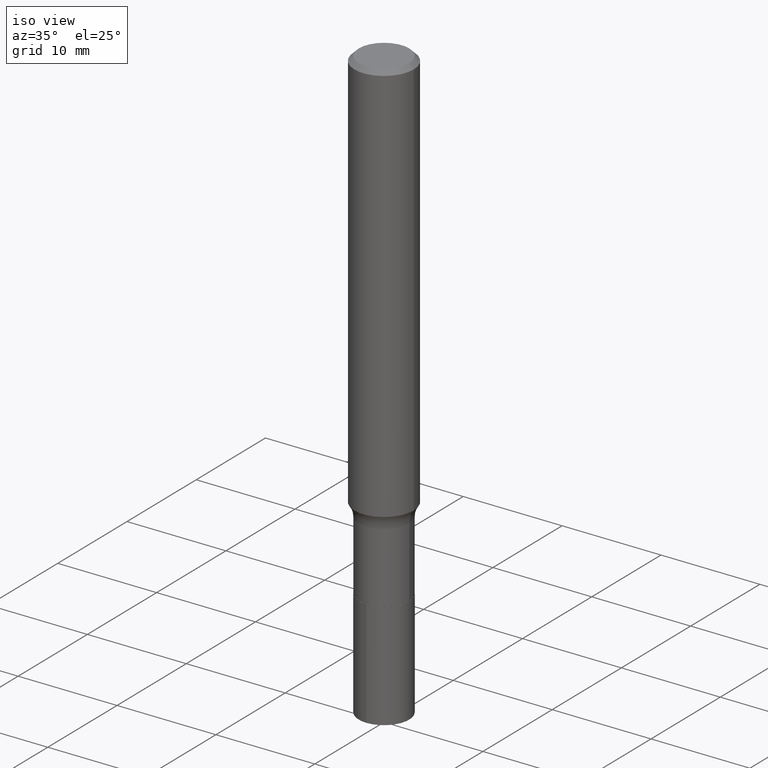
[diagram: clean part render]
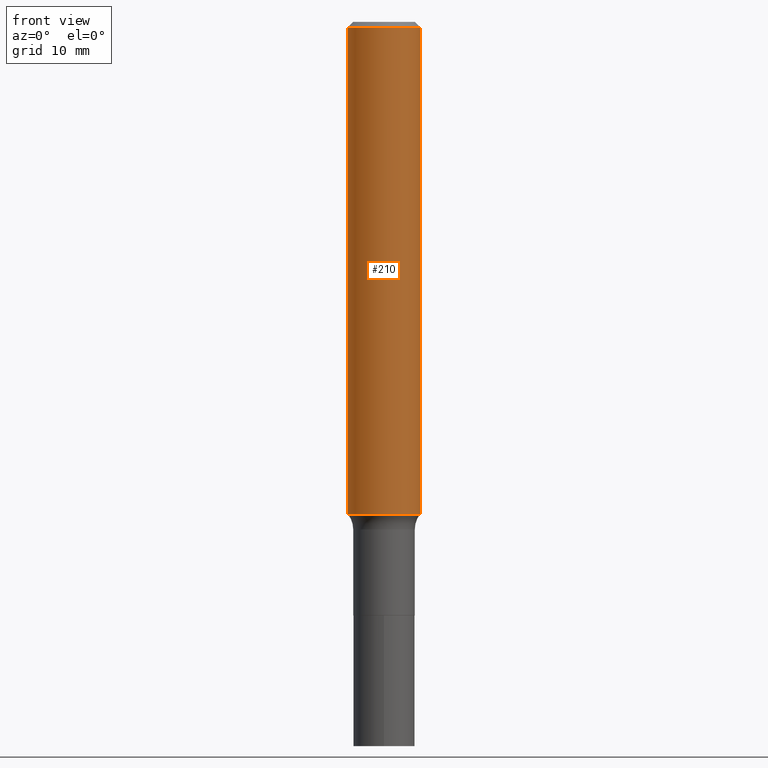
[diagram: tour spotlight — one face highlighted and labeled with its STEP entity id]
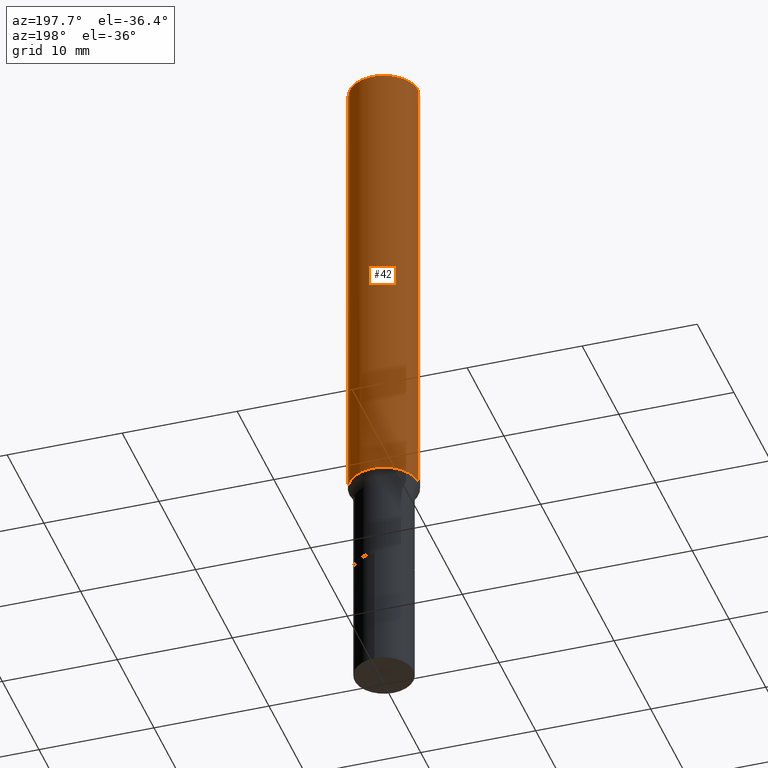
[diagram: tour spotlight — one face highlighted and labeled with its STEP entity id]
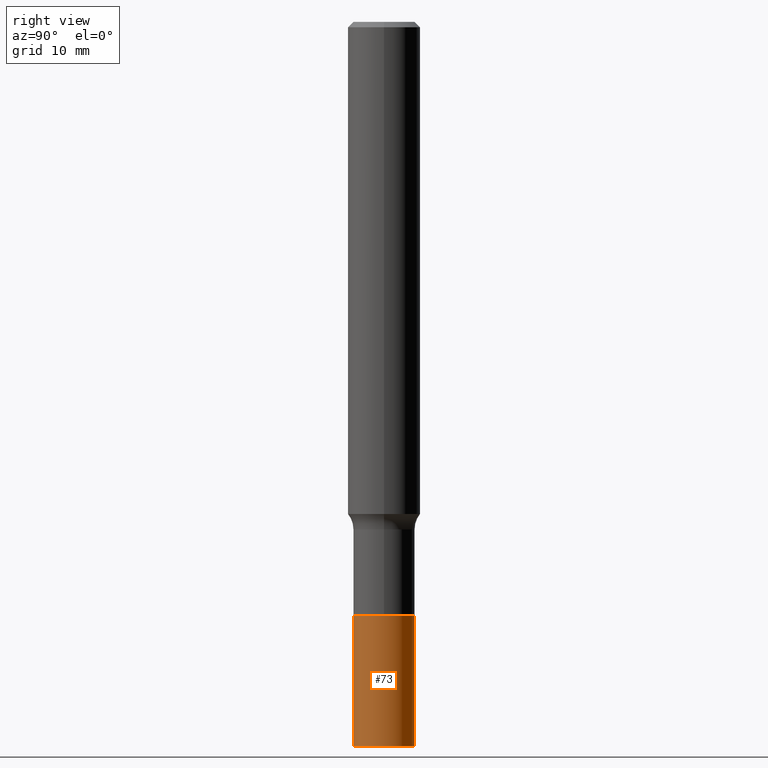
[diagram: tour spotlight — one face highlighted and labeled with its STEP entity id]
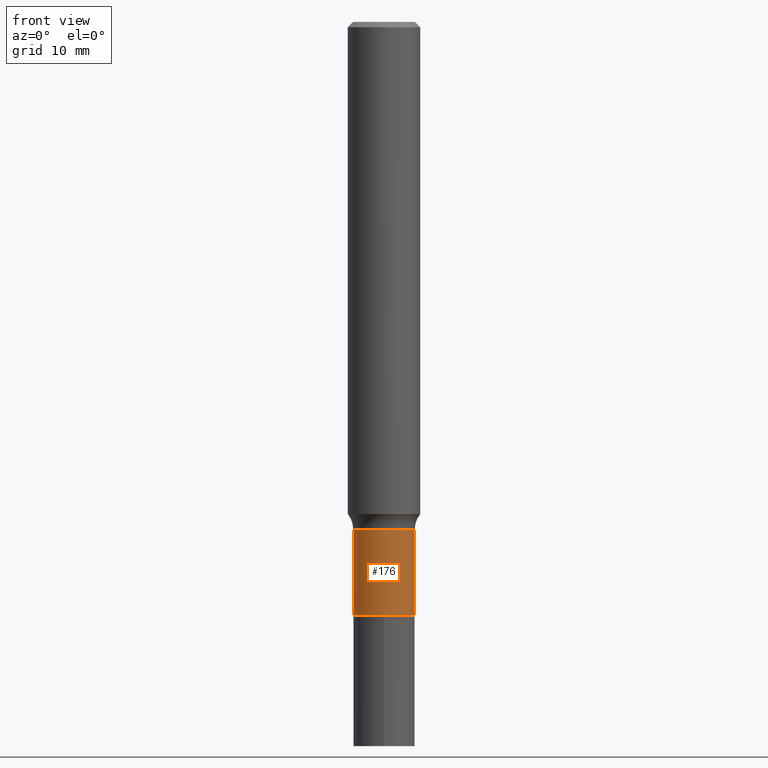
[diagram: tour spotlight — one face highlighted and labeled with its STEP entity id]
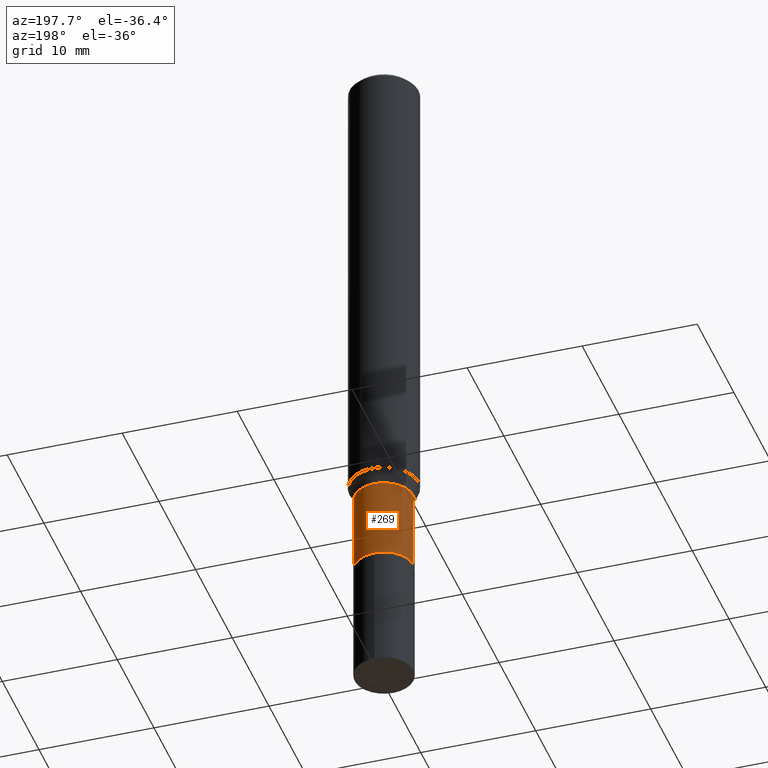
[diagram: tour spotlight — one face highlighted and labeled with its STEP entity id]
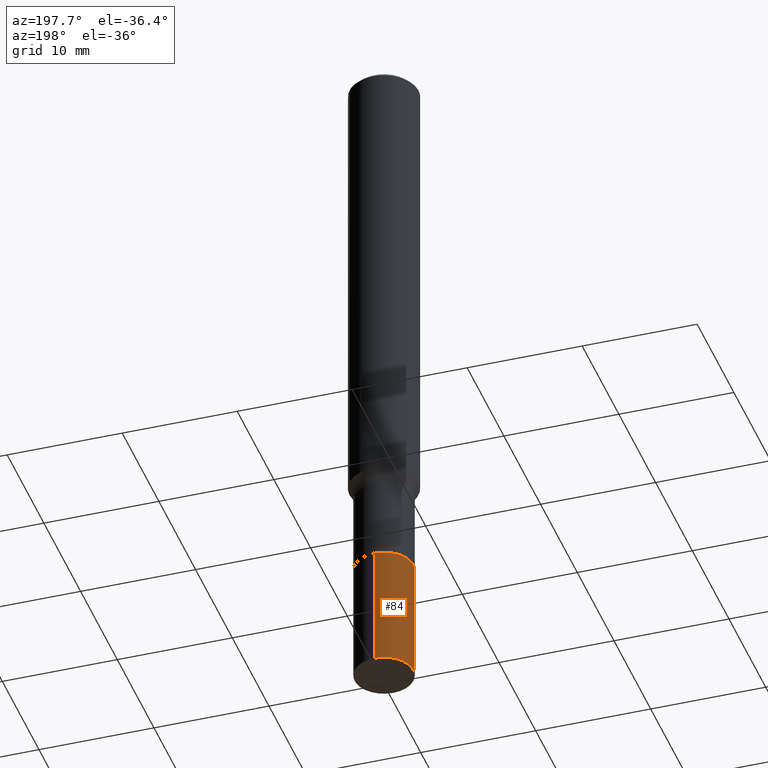
[diagram: tour spotlight — one face highlighted and labeled with its STEP entity id]
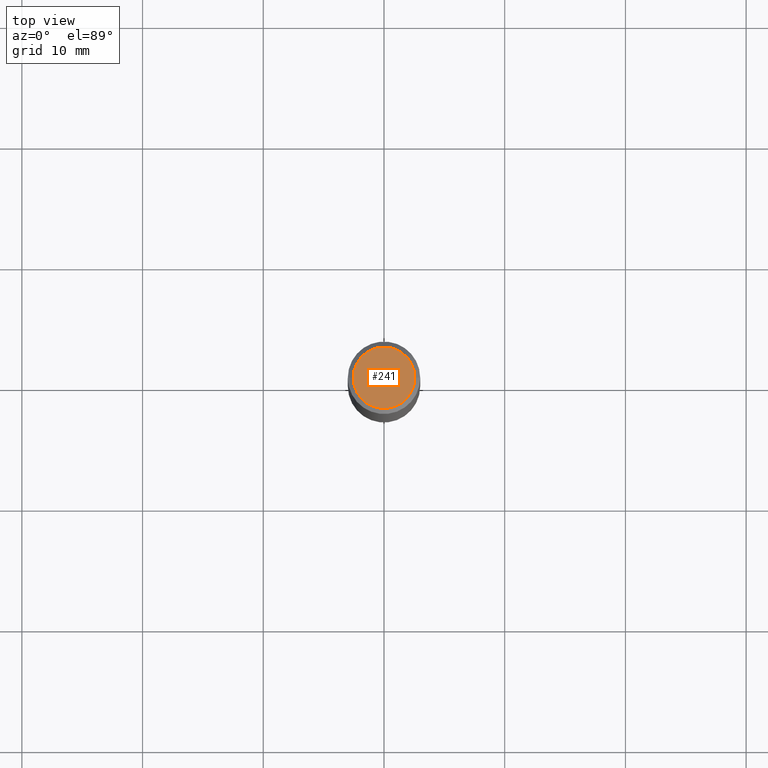
[diagram: tour spotlight — one face highlighted and labeled with its STEP entity id]
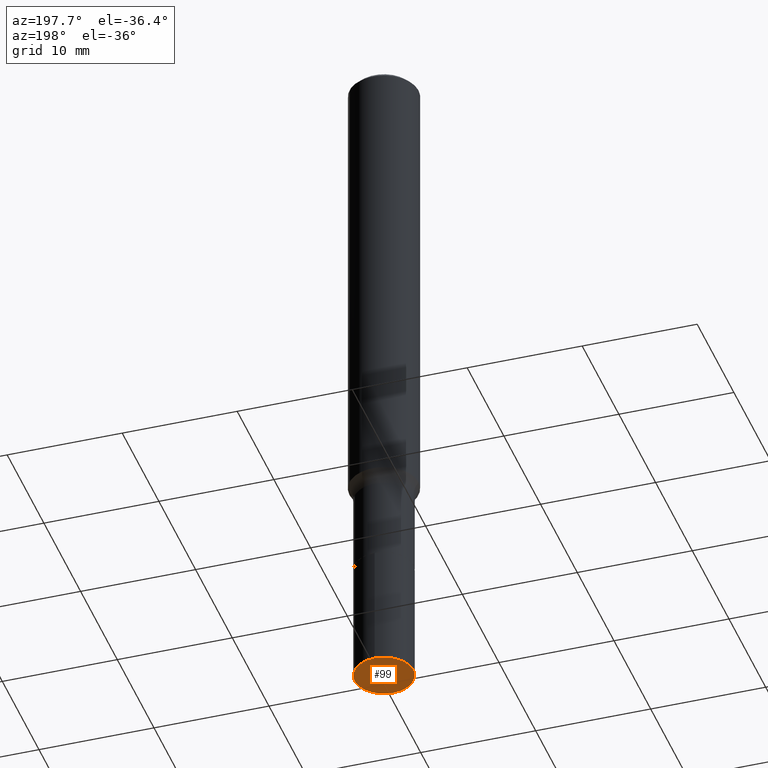
[diagram: tour spotlight — one face highlighted and labeled with its STEP entity id]
A machine part: a face-by-face anatomy tour. The part has 16 B-rep faces; the first image is the clean iso view, then the 8 largest visible faces are spotlighted one at a time (largest first), each with its STEP entity span.

Face 1 — front view, entity #210. In plain terms, the highlighted cylindrical surface (edge-blend (fillet) strip) has radius 2.9997 mm, axis along (-0, 0, 1).
Definition (entity closure, byte-faithful):
#17 = DIRECTION ( 'NONE',  ( 1.000000000000000000, -6.982962677686266711E-15, 4.876176775795935793E-29 ) ) ;
#35 = DIRECTION ( 'NONE',  ( 1.000000000000000000, -6.982962677686267499E-15, 0.000000000000000000 ) ) ;
#69 = CARTESIAN_POINT ( 'NONE',  ( -0.1181000000000000105, -1.993537154280403613E-15, -0.01771500000000011954 ) ) ;
#71 = EDGE_LOOP ( 'NONE', ( #380, #336, #272, #388 ) ) ;
#96 = CARTESIAN_POINT ( 'NONE',  ( 0.000000000000000000, 0.000000000000000000, 0.000000000000000000 ) ) ;
#105 = EDGE_CURVE ( 'NONE', #174, #450, #251, .T. ) ;
#121 = VECTOR ( 'NONE', #307, 39.37007874015748143 ) ;
#131 = FACE_OUTER_BOUND ( 'NONE', #71, .T. ) ;
#174 = VERTEX_POINT ( 'NONE', #209 ) ;
#179 = AXIS2_PLACEMENT_3D ( 'NONE', #207, #236, #268 ) ;
#182 = CARTESIAN_POINT ( 'NONE',  ( 0.1181000000000002048, -6.428212550743309629E-15, -1.604913248760255540 ) ) ;
#204 = LINE ( 'NONE', #342, #121 ) ;
#207 = CARTESIAN_POINT ( 'NONE',  ( 3.924765286476451324E-29, -5.603524658508559788E-15, -1.604913248760255540 ) ) ;
#209 = CARTESIAN_POINT ( 'NONE',  ( -0.1181000000000002048, -4.764373687575879225E-15, -1.604913248760255540 ) ) ;
#210 = ADVANCED_FACE ( 'NONE', ( #131 ), #416, .T. ) ;
#214 = DIRECTION ( 'NONE',  ( -2.445468806185136597E-29, 3.491481338843145583E-15, 1.000000000000000000 ) ) ;
#216 = DIRECTION ( 'NONE',  ( -2.445468806185136877E-29, 3.491481338843145188E-15, 1.000000000000000000 ) ) ;
#236 = DIRECTION ( 'NONE',  ( -2.445468806185136597E-29, 3.491481338843145583E-15, 1.000000000000000000 ) ) ;
#237 = VECTOR ( 'NONE', #216, 39.37007874015748143 ) ;
#244 = CARTESIAN_POINT ( 'NONE',  ( 4.332147990156999371E-31, -6.185159191760674092E-17, -0.01771500000000011954 ) ) ;
#251 = CIRCLE ( 'NONE', #179, 0.1181000000000002048 ) ;
#253 = EDGE_CURVE ( 'NONE', #174, #276, #204, .T. ) ;
#268 = DIRECTION ( 'NONE',  ( 1.000000000000000000, -6.982962677686268288E-15, 0.000000000000000000 ) ) ;
#272 = ORIENTED_EDGE ( 'NONE', *, *, #396, .T. ) ;
#273 = AXIS2_PLACEMENT_3D ( 'NONE', #96, #384, #17 ) ;
#276 = VERTEX_POINT ( 'NONE', #69 ) ;
#286 = LINE ( 'NONE', #356, #237 ) ;
#307 = DIRECTION ( 'NONE',  ( -2.445468806185136877E-29, 3.491481338843145188E-15, 1.000000000000000000 ) ) ;
#336 = ORIENTED_EDGE ( 'NONE', *, *, #105, .T. ) ;
#342 = CARTESIAN_POINT ( 'NONE',  ( -0.1181000000000001077, 8.391509709326790846E-16, -5.809262341591049389E-30 ) ) ;
#347 = VERTEX_POINT ( 'NONE', #392 ) ;
#352 = CIRCLE ( 'NONE', #381, 0.1181000000000000105 ) ;
#356 = CARTESIAN_POINT ( 'NONE',  ( 0.1181000000000001077, -8.246878922347488542E-16, 5.758764772215005345E-30 ) ) ;
#367 = EDGE_CURVE ( 'NONE', #276, #347, #352, .T. ) ;
#380 = ORIENTED_EDGE ( 'NONE', *, *, #253, .F. ) ;
#381 = AXIS2_PLACEMENT_3D ( 'NONE', #244, #214, #35 ) ;
#384 = DIRECTION ( 'NONE',  ( -2.445468806185136597E-29, 3.491481338843145583E-15, 1.000000000000000000 ) ) ;
#388 = ORIENTED_EDGE ( 'NONE', *, *, #367, .F. ) ;
#392 = CARTESIAN_POINT ( 'NONE',  ( 0.1181000000000000105, -8.865394841523550528E-16, -0.01771500000000011954 ) ) ;
#396 = EDGE_CURVE ( 'NONE', #450, #347, #286, .T. ) ;
#416 = CYLINDRICAL_SURFACE ( 'NONE', #273, 0.1181000000000001077 ) ;
#450 = VERTEX_POINT ( 'NONE', #182 ) ;

Face 2 — auxiliary view, entity #42. In plain terms, the highlighted cylindrical surface (edge-blend (fillet) strip) has radius 2.9997 mm, axis along (-0, 0, 1).
Definition (entity closure, byte-faithful):
#12 = FACE_OUTER_BOUND ( 'NONE', #442, .T. ) ;
#42 = ADVANCED_FACE ( 'NONE', ( #12 ), #404, .T. ) ;
#60 = DIRECTION ( 'NONE',  ( 1.000000000000000000, -6.982962677686268288E-15, 0.000000000000000000 ) ) ;
#65 = ORIENTED_EDGE ( 'NONE', *, *, #396, .F. ) ;
#69 = CARTESIAN_POINT ( 'NONE',  ( -0.1181000000000000105, -1.993537154280403613E-15, -0.01771500000000011954 ) ) ;
#103 = DIRECTION ( 'NONE',  ( -2.445468806185136597E-29, 3.491481338843145583E-15, 1.000000000000000000 ) ) ;
#121 = VECTOR ( 'NONE', #307, 39.37007874015748143 ) ;
#171 = AXIS2_PLACEMENT_3D ( 'NONE', #178, #314, #60 ) ;
#174 = VERTEX_POINT ( 'NONE', #209 ) ;
#178 = CARTESIAN_POINT ( 'NONE',  ( 3.924765286476451324E-29, -5.603524658508559788E-15, -1.604913248760255540 ) ) ;
#182 = CARTESIAN_POINT ( 'NONE',  ( 0.1181000000000002048, -6.428212550743309629E-15, -1.604913248760255540 ) ) ;
#204 = LINE ( 'NONE', #342, #121 ) ;
#209 = CARTESIAN_POINT ( 'NONE',  ( -0.1181000000000002048, -4.764373687575879225E-15, -1.604913248760255540 ) ) ;
#216 = DIRECTION ( 'NONE',  ( -2.445468806185136877E-29, 3.491481338843145188E-15, 1.000000000000000000 ) ) ;
#237 = VECTOR ( 'NONE', #216, 39.37007874015748143 ) ;
#247 = EDGE_CURVE ( 'NONE', #450, #174, #343, .T. ) ;
#250 = AXIS2_PLACEMENT_3D ( 'NONE', #446, #438, #265 ) ;
#253 = EDGE_CURVE ( 'NONE', #174, #276, #204, .T. ) ;
#265 = DIRECTION ( 'NONE',  ( 1.000000000000000000, -6.982962677686266711E-15, 4.876176775795935793E-29 ) ) ;
#276 = VERTEX_POINT ( 'NONE', #69 ) ;
#286 = LINE ( 'NONE', #356, #237 ) ;
#289 = AXIS2_PLACEMENT_3D ( 'NONE', #431, #103, #321 ) ;
#307 = DIRECTION ( 'NONE',  ( -2.445468806185136877E-29, 3.491481338843145188E-15, 1.000000000000000000 ) ) ;
#311 = EDGE_CURVE ( 'NONE', #347, #276, #449, .T. ) ;
#314 = DIRECTION ( 'NONE',  ( -2.445468806185136597E-29, 3.491481338843145583E-15, 1.000000000000000000 ) ) ;
#321 = DIRECTION ( 'NONE',  ( 1.000000000000000000, -6.982962677686267499E-15, 0.000000000000000000 ) ) ;
#342 = CARTESIAN_POINT ( 'NONE',  ( -0.1181000000000001077, 8.391509709326790846E-16, -5.809262341591049389E-30 ) ) ;
#343 = CIRCLE ( 'NONE', #171, 0.1181000000000002048 ) ;
#347 = VERTEX_POINT ( 'NONE', #392 ) ;
#356 = CARTESIAN_POINT ( 'NONE',  ( 0.1181000000000001077, -8.246878922347488542E-16, 5.758764772215005345E-30 ) ) ;
#365 = ORIENTED_EDGE ( 'NONE', *, *, #247, .T. ) ;
#383 = ORIENTED_EDGE ( 'NONE', *, *, #253, .T. ) ;
#392 = CARTESIAN_POINT ( 'NONE',  ( 0.1181000000000000105, -8.865394841523550528E-16, -0.01771500000000011954 ) ) ;
#396 = EDGE_CURVE ( 'NONE', #450, #347, #286, .T. ) ;
#404 = CYLINDRICAL_SURFACE ( 'NONE', #250, 0.1181000000000001077 ) ;
#411 = ORIENTED_EDGE ( 'NONE', *, *, #311, .F. ) ;
#431 = CARTESIAN_POINT ( 'NONE',  ( 4.332147990156999371E-31, -6.185159191760674092E-17, -0.01771500000000011954 ) ) ;
#438 = DIRECTION ( 'NONE',  ( -2.445468806185136597E-29, 3.491481338843145583E-15, 1.000000000000000000 ) ) ;
#442 = EDGE_LOOP ( 'NONE', ( #365, #383, #411, #65 ) ) ;
#446 = CARTESIAN_POINT ( 'NONE',  ( 0.000000000000000000, 0.000000000000000000, 0.000000000000000000 ) ) ;
#449 = CIRCLE ( 'NONE', #289, 0.1181000000000000105 ) ;
#450 = VERTEX_POINT ( 'NONE', #182 ) ;

Face 3 — right view, entity #73. In plain terms, the highlighted cylindrical surface (edge-blend (fillet) strip) has radius 2.5502 mm, axis along (-0, 0, 1).
Definition (entity closure, byte-faithful):
#2 = EDGE_CURVE ( 'NONE', #377, #160, #199, .T. ) ;
#4 = AXIS2_PLACEMENT_3D ( 'NONE', #194, #254, #401 ) ;
#10 = CARTESIAN_POINT ( 'NONE',  ( 5.792487377357313463E-29, -8.224949339710422363E-15, -2.362200000000000522 ) ) ;
#16 = ORIENTED_EDGE ( 'NONE', *, *, #452, .F. ) ;
#20 = CARTESIAN_POINT ( 'NONE',  ( 7.133849067031929695E-16, 0.1003999999999917597, -2.362200000000000966 ) ) ;
#23 = CIRCLE ( 'NONE', #4, 0.1004000000000000031 ) ;
#24 = VERTEX_POINT ( 'NONE', #123 ) ;
#36 = EDGE_CURVE ( 'NONE', #160, #458, #334, .T. ) ;
#44 = ORIENTED_EDGE ( 'NONE', *, *, #36, .T. ) ;
#73 = ADVANCED_FACE ( 'NONE', ( #88 ), #259, .T. ) ;
#80 = ORIENTED_EDGE ( 'NONE', *, *, #2, .T. ) ;
#88 = FACE_OUTER_BOUND ( 'NONE', #138, .T. ) ;
#113 = CARTESIAN_POINT ( 'NONE',  ( 7.133849067031982943E-16, 0.1003999999999932446, -1.936200000000000587 ) ) ;
#123 = CARTESIAN_POINT ( 'NONE',  ( -7.010894528396538437E-16, -0.1004000000000067616, -1.936199999999999921 ) ) ;
#138 = EDGE_LOOP ( 'NONE', ( #80, #44, #16, #423 ) ) ;
#154 = DIRECTION ( 'NONE',  ( -2.482560269534391966E-29, 3.438364252212024500E-15, 1.000000000000000000 ) ) ;
#155 = CARTESIAN_POINT ( 'NONE',  ( 7.133849067031878419E-16, 0.1003999999999932446, -1.936200000000000587 ) ) ;
#160 = VERTEX_POINT ( 'NONE', #20 ) ;
#161 = DIRECTION ( 'NONE',  ( -6.982962677686266711E-15, -1.000000000000000000, 2.720964137115800271E-15 ) ) ;
#194 = CARTESIAN_POINT ( 'NONE',  ( 4.734916702535661881E-29, -6.760206168268099421E-15, -1.936200000000000143 ) ) ;
#199 = CIRCLE ( 'NONE', #362, 0.1003999999999999893 ) ;
#225 = CARTESIAN_POINT ( 'NONE',  ( -7.010894528396538437E-16, -0.1004000000000067616, -1.936199999999999921 ) ) ;
#254 = DIRECTION ( 'NONE',  ( -2.482560269534391685E-29, 3.438364252212024106E-15, 1.000000000000000000 ) ) ;
#259 = CYLINDRICAL_SURFACE ( 'NONE', #426, 0.1004000000000000031 ) ;
#294 = DIRECTION ( 'NONE',  ( -2.482560269534391966E-29, 3.438364252212024500E-15, 1.000000000000000000 ) ) ;
#300 = DIRECTION ( 'NONE',  ( -2.482560269534391685E-29, 3.438364252212024106E-15, 1.000000000000000000 ) ) ;
#334 = LINE ( 'NONE', #155, #439 ) ;
#359 = VECTOR ( 'NONE', #154, 39.37007874015748143 ) ;
#362 = AXIS2_PLACEMENT_3D ( 'NONE', #10, #444, #161 ) ;
#371 = CARTESIAN_POINT ( 'NONE',  ( 4.734916702535661881E-29, -6.760206168268099421E-15, -1.936200000000000143 ) ) ;
#377 = VERTEX_POINT ( 'NONE', #463 ) ;
#398 = LINE ( 'NONE', #225, #359 ) ;
#401 = DIRECTION ( 'NONE',  ( -6.982962677686266711E-15, -1.000000000000000000, 2.720964137115799877E-15 ) ) ;
#423 = ORIENTED_EDGE ( 'NONE', *, *, #459, .F. ) ;
#426 = AXIS2_PLACEMENT_3D ( 'NONE', #371, #300, #445 ) ;
#439 = VECTOR ( 'NONE', #294, 39.37007874015748143 ) ;
#444 = DIRECTION ( 'NONE',  ( -2.482560269534391685E-29, 3.438364252212024106E-15, 1.000000000000000000 ) ) ;
#445 = DIRECTION ( 'NONE',  ( -6.982962677686266711E-15, -1.000000000000000000, 2.720964137115799877E-15 ) ) ;
#452 = EDGE_CURVE ( 'NONE', #24, #458, #23, .T. ) ;
#458 = VERTEX_POINT ( 'NONE', #113 ) ;
#459 = EDGE_CURVE ( 'NONE', #377, #24, #398, .T. ) ;
#463 = CARTESIAN_POINT ( 'NONE',  ( -7.010894528396431941E-16, -0.1004000000000082188, -2.362200000000000077 ) ) ;

Face 4 — front view, entity #176. In plain terms, the highlighted cylindrical surface (edge-blend (fillet) strip) has radius 2.5502 mm, axis along (-0, 0, 1).
Definition (entity closure, byte-faithful):
#5 = CARTESIAN_POINT ( 'NONE',  ( 0.1004000000000000031, -7.459549880438378994E-15, -1.935700000000000420 ) ) ;
#7 = ORIENTED_EDGE ( 'NONE', *, *, #166, .T. ) ;
#21 = VECTOR ( 'NONE', #466, 39.37007874015748143 ) ;
#31 = AXIS2_PLACEMENT_3D ( 'NONE', #419, #351, #233 ) ;
#40 = VERTEX_POINT ( 'NONE', #5 ) ;
#47 = VERTEX_POINT ( 'NONE', #301 ) ;
#48 = LINE ( 'NONE', #82, #418 ) ;
#61 = EDGE_LOOP ( 'NONE', ( #94, #7, #331, #420 ) ) ;
#68 = DIRECTION ( 'NONE',  ( -2.445468806185136597E-29, 3.491481338843145583E-15, 1.000000000000000000 ) ) ;
#75 = DIRECTION ( 'NONE',  ( 1.000000000000000000, -6.982962677686264344E-15, 0.000000000000000000 ) ) ;
#82 = CARTESIAN_POINT ( 'NONE',  ( -0.1003999999999999893, 7.133849067031405103E-16, -4.938610830615924293E-30 ) ) ;
#86 = VERTEX_POINT ( 'NONE', #126 ) ;
#94 = ORIENTED_EDGE ( 'NONE', *, *, #467, .F. ) ;
#126 = CARTESIAN_POINT ( 'NONE',  ( -0.1003999999999999754, -5.555220689055844179E-15, -1.655100000000000238 ) ) ;
#130 = DIRECTION ( 'NONE',  ( 1.000000000000000000, -6.982962677686262766E-15, 0.000000000000000000 ) ) ;
#166 = EDGE_CURVE ( 'NONE', #47, #40, #410, .T. ) ;
#176 = ADVANCED_FACE ( 'NONE', ( #454 ), #412, .T. ) ;
#181 = VERTEX_POINT ( 'NONE', #339 ) ;
#183 = LINE ( 'NONE', #245, #21 ) ;
#191 = AXIS2_PLACEMENT_3D ( 'NONE', #462, #324, #75 ) ;
#233 = DIRECTION ( 'NONE',  ( 1.000000000000000000, -6.982962677686266711E-15, 4.876176775795935232E-29 ) ) ;
#245 = CARTESIAN_POINT ( 'NONE',  ( 0.1003999999999999893, -7.010894528397010768E-16, 4.895681482899118454E-30 ) ) ;
#283 = EDGE_CURVE ( 'NONE', #86, #181, #432, .T. ) ;
#297 = AXIS2_PLACEMENT_3D ( 'NONE', #414, #68, #130 ) ;
#301 = CARTESIAN_POINT ( 'NONE',  ( -0.1004000000000000031, -5.555220689055844179E-15, -1.935700000000000420 ) ) ;
#318 = EDGE_CURVE ( 'NONE', #40, #181, #183, .T. ) ;
#324 = DIRECTION ( 'NONE',  ( -2.445468806185136597E-29, 3.491481338843145583E-15, 1.000000000000000000 ) ) ;
#331 = ORIENTED_EDGE ( 'NONE', *, *, #318, .T. ) ;
#339 = CARTESIAN_POINT ( 'NONE',  ( 0.1003999999999999754, -6.479840216758992537E-15, -1.655100000000000238 ) ) ;
#351 = DIRECTION ( 'NONE',  ( -2.445468806185136597E-29, 3.491481338843145583E-15, 1.000000000000000000 ) ) ;
#410 = CIRCLE ( 'NONE', #297, 0.1004000000000000031 ) ;
#412 = CYLINDRICAL_SURFACE ( 'NONE', #31, 0.1003999999999999893 ) ;
#414 = CARTESIAN_POINT ( 'NONE',  ( 4.733693968132569640E-29, -6.758460427598678707E-15, -1.935700000000000420 ) ) ;
#418 = VECTOR ( 'NONE', #440, 39.37007874015748143 ) ;
#419 = CARTESIAN_POINT ( 'NONE',  ( 0.000000000000000000, 0.000000000000000000, 0.000000000000000000 ) ) ;
#420 = ORIENTED_EDGE ( 'NONE', *, *, #283, .F. ) ;
#432 = CIRCLE ( 'NONE', #191, 0.1003999999999999754 ) ;
#440 = DIRECTION ( 'NONE',  ( -2.445468806185136877E-29, 3.491481338843145188E-15, 1.000000000000000000 ) ) ;
#454 = FACE_OUTER_BOUND ( 'NONE', #61, .T. ) ;
#462 = CARTESIAN_POINT ( 'NONE',  ( 4.047495421117020390E-29, -5.778750763919291461E-15, -1.655100000000000238 ) ) ;
#466 = DIRECTION ( 'NONE',  ( -2.445468806185136877E-29, 3.491481338843145188E-15, 1.000000000000000000 ) ) ;
#467 = EDGE_CURVE ( 'NONE', #47, #86, #48, .T. ) ;

Face 5 — auxiliary view, entity #269. In plain terms, the highlighted cylindrical surface (edge-blend (fillet) strip) has radius 2.5502 mm, axis along (-0, 0, 1).
Definition (entity closure, byte-faithful):
#1 = FACE_OUTER_BOUND ( 'NONE', #98, .T. ) ;
#5 = CARTESIAN_POINT ( 'NONE',  ( 0.1004000000000000031, -7.459549880438378994E-15, -1.935700000000000420 ) ) ;
#21 = VECTOR ( 'NONE', #466, 39.37007874015748143 ) ;
#39 = DIRECTION ( 'NONE',  ( 1.000000000000000000, -6.982962677686262766E-15, 0.000000000000000000 ) ) ;
#40 = VERTEX_POINT ( 'NONE', #5 ) ;
#46 = ORIENTED_EDGE ( 'NONE', *, *, #467, .T. ) ;
#47 = VERTEX_POINT ( 'NONE', #301 ) ;
#48 = LINE ( 'NONE', #82, #418 ) ;
#56 = CARTESIAN_POINT ( 'NONE',  ( 4.047495421117020390E-29, -5.778750763919291461E-15, -1.655100000000000238 ) ) ;
#64 = AXIS2_PLACEMENT_3D ( 'NONE', #56, #240, #132 ) ;
#78 = CARTESIAN_POINT ( 'NONE',  ( 0.000000000000000000, 0.000000000000000000, 0.000000000000000000 ) ) ;
#82 = CARTESIAN_POINT ( 'NONE',  ( -0.1003999999999999893, 7.133849067031405103E-16, -4.938610830615924293E-30 ) ) ;
#86 = VERTEX_POINT ( 'NONE', #126 ) ;
#89 = AXIS2_PLACEMENT_3D ( 'NONE', #143, #317, #39 ) ;
#98 = EDGE_LOOP ( 'NONE', ( #190, #46, #144, #285 ) ) ;
#107 = DIRECTION ( 'NONE',  ( -2.445468806185136597E-29, 3.491481338843145583E-15, 1.000000000000000000 ) ) ;
#109 = CIRCLE ( 'NONE', #89, 0.1004000000000000031 ) ;
#126 = CARTESIAN_POINT ( 'NONE',  ( -0.1003999999999999754, -5.555220689055844179E-15, -1.655100000000000238 ) ) ;
#132 = DIRECTION ( 'NONE',  ( 1.000000000000000000, -6.982962677686264344E-15, 0.000000000000000000 ) ) ;
#143 = CARTESIAN_POINT ( 'NONE',  ( 4.733693968132569640E-29, -6.758460427598678707E-15, -1.935700000000000420 ) ) ;
#144 = ORIENTED_EDGE ( 'NONE', *, *, #193, .F. ) ;
#181 = VERTEX_POINT ( 'NONE', #339 ) ;
#183 = LINE ( 'NONE', #245, #21 ) ;
#186 = CYLINDRICAL_SURFACE ( 'NONE', #456, 0.1003999999999999893 ) ;
#190 = ORIENTED_EDGE ( 'NONE', *, *, #332, .T. ) ;
#193 = EDGE_CURVE ( 'NONE', #181, #86, #326, .T. ) ;
#240 = DIRECTION ( 'NONE',  ( -2.445468806185136597E-29, 3.491481338843145583E-15, 1.000000000000000000 ) ) ;
#245 = CARTESIAN_POINT ( 'NONE',  ( 0.1003999999999999893, -7.010894528397010768E-16, 4.895681482899118454E-30 ) ) ;
#269 = ADVANCED_FACE ( 'NONE', ( #1 ), #186, .T. ) ;
#280 = DIRECTION ( 'NONE',  ( 1.000000000000000000, -6.982962677686266711E-15, 4.876176775795935232E-29 ) ) ;
#285 = ORIENTED_EDGE ( 'NONE', *, *, #318, .F. ) ;
#301 = CARTESIAN_POINT ( 'NONE',  ( -0.1004000000000000031, -5.555220689055844179E-15, -1.935700000000000420 ) ) ;
#317 = DIRECTION ( 'NONE',  ( -2.445468806185136597E-29, 3.491481338843145583E-15, 1.000000000000000000 ) ) ;
#318 = EDGE_CURVE ( 'NONE', #40, #181, #183, .T. ) ;
#326 = CIRCLE ( 'NONE', #64, 0.1003999999999999754 ) ;
#332 = EDGE_CURVE ( 'NONE', #40, #47, #109, .T. ) ;
#339 = CARTESIAN_POINT ( 'NONE',  ( 0.1003999999999999754, -6.479840216758992537E-15, -1.655100000000000238 ) ) ;
#418 = VECTOR ( 'NONE', #440, 39.37007874015748143 ) ;
#440 = DIRECTION ( 'NONE',  ( -2.445468806185136877E-29, 3.491481338843145188E-15, 1.000000000000000000 ) ) ;
#456 = AXIS2_PLACEMENT_3D ( 'NONE', #78, #107, #280 ) ;
#466 = DIRECTION ( 'NONE',  ( -2.445468806185136877E-29, 3.491481338843145188E-15, 1.000000000000000000 ) ) ;
#467 = EDGE_CURVE ( 'NONE', #47, #86, #48, .T. ) ;

Face 6 — auxiliary view, entity #84. In plain terms, the highlighted cylindrical surface (edge-blend (fillet) strip) has radius 2.5502 mm, axis along (-0, 0, 1).
Definition (entity closure, byte-faithful):
#20 = CARTESIAN_POINT ( 'NONE',  ( 7.133849067031929695E-16, 0.1003999999999917597, -2.362200000000000966 ) ) ;
#24 = VERTEX_POINT ( 'NONE', #123 ) ;
#26 = ORIENTED_EDGE ( 'NONE', *, *, #354, .F. ) ;
#34 = ORIENTED_EDGE ( 'NONE', *, *, #36, .F. ) ;
#36 = EDGE_CURVE ( 'NONE', #160, #458, #334, .T. ) ;
#49 = CYLINDRICAL_SURFACE ( 'NONE', #151, 0.1004000000000000031 ) ;
#53 = CIRCLE ( 'NONE', #281, 0.1003999999999999893 ) ;
#72 = DIRECTION ( 'NONE',  ( -6.982962677686266711E-15, -1.000000000000000000, 2.720964137115799877E-15 ) ) ;
#83 = DIRECTION ( 'NONE',  ( -2.482560269534391685E-29, 3.438364252212024106E-15, 1.000000000000000000 ) ) ;
#84 = ADVANCED_FACE ( 'NONE', ( #153 ), #49, .T. ) ;
#91 = EDGE_LOOP ( 'NONE', ( #34, #305, #213, #26 ) ) ;
#108 = CARTESIAN_POINT ( 'NONE',  ( 5.792487377357313463E-29, -8.224949339710422363E-15, -2.362200000000000522 ) ) ;
#113 = CARTESIAN_POINT ( 'NONE',  ( 7.133849067031982943E-16, 0.1003999999999932446, -1.936200000000000587 ) ) ;
#123 = CARTESIAN_POINT ( 'NONE',  ( -7.010894528396538437E-16, -0.1004000000000067616, -1.936199999999999921 ) ) ;
#142 = CIRCLE ( 'NONE', #260, 0.1004000000000000031 ) ;
#149 = DIRECTION ( 'NONE',  ( -6.982962677686266711E-15, -1.000000000000000000, 2.720964137115800271E-15 ) ) ;
#151 = AXIS2_PLACEMENT_3D ( 'NONE', #373, #83, #201 ) ;
#153 = FACE_OUTER_BOUND ( 'NONE', #91, .T. ) ;
#154 = DIRECTION ( 'NONE',  ( -2.482560269534391966E-29, 3.438364252212024500E-15, 1.000000000000000000 ) ) ;
#155 = CARTESIAN_POINT ( 'NONE',  ( 7.133849067031878419E-16, 0.1003999999999932446, -1.936200000000000587 ) ) ;
#160 = VERTEX_POINT ( 'NONE', #20 ) ;
#201 = DIRECTION ( 'NONE',  ( -6.982962677686266711E-15, -1.000000000000000000, 2.720964137115799877E-15 ) ) ;
#213 = ORIENTED_EDGE ( 'NONE', *, *, #459, .T. ) ;
#225 = CARTESIAN_POINT ( 'NONE',  ( -7.010894528396538437E-16, -0.1004000000000067616, -1.936199999999999921 ) ) ;
#260 = AXIS2_PLACEMENT_3D ( 'NONE', #390, #468, #72 ) ;
#281 = AXIS2_PLACEMENT_3D ( 'NONE', #108, #315, #149 ) ;
#294 = DIRECTION ( 'NONE',  ( -2.482560269534391966E-29, 3.438364252212024500E-15, 1.000000000000000000 ) ) ;
#305 = ORIENTED_EDGE ( 'NONE', *, *, #322, .T. ) ;
#315 = DIRECTION ( 'NONE',  ( -2.482560269534391685E-29, 3.438364252212024106E-15, 1.000000000000000000 ) ) ;
#322 = EDGE_CURVE ( 'NONE', #160, #377, #53, .T. ) ;
#334 = LINE ( 'NONE', #155, #439 ) ;
#354 = EDGE_CURVE ( 'NONE', #458, #24, #142, .T. ) ;
#359 = VECTOR ( 'NONE', #154, 39.37007874015748143 ) ;
#373 = CARTESIAN_POINT ( 'NONE',  ( 4.734916702535661881E-29, -6.760206168268099421E-15, -1.936200000000000143 ) ) ;
#377 = VERTEX_POINT ( 'NONE', #463 ) ;
#390 = CARTESIAN_POINT ( 'NONE',  ( 4.734916702535661881E-29, -6.760206168268099421E-15, -1.936200000000000143 ) ) ;
#398 = LINE ( 'NONE', #225, #359 ) ;
#439 = VECTOR ( 'NONE', #294, 39.37007874015748143 ) ;
#458 = VERTEX_POINT ( 'NONE', #113 ) ;
#459 = EDGE_CURVE ( 'NONE', #377, #24, #398, .T. ) ;
#463 = CARTESIAN_POINT ( 'NONE',  ( -7.010894528396431941E-16, -0.1004000000000082188, -2.362200000000000077 ) ) ;
#468 = DIRECTION ( 'NONE',  ( -2.482560269534391685E-29, 3.438364252212024106E-15, 1.000000000000000000 ) ) ;

Face 7 — top view, entity #241. In plain terms, the highlighted planar face has unit normal (0, -0, -1).
Definition (entity closure, byte-faithful):
#27 = FACE_OUTER_BOUND ( 'NONE', #461, .T. ) ;
#41 = CARTESIAN_POINT ( 'NONE',  ( 8.017399369065212404E-46, -1.144672146802464325E-31, -3.278471329827401435E-17 ) ) ;
#74 = DIRECTION ( 'NONE',  ( 1.000000000000000000, -6.982962677686266711E-15, 4.875668750515089058E-29 ) ) ;
#77 = AXIS2_PLACEMENT_3D ( 'NONE', #41, #102, #188 ) ;
#93 = DIRECTION ( 'NONE',  ( 2.438088387897960049E-29, -3.491481338843145188E-15, -1.000000000000000000 ) ) ;
#100 = CARTESIAN_POINT ( 'NONE',  ( -0.1003849999999999465, 7.319105043583383731E-16, -3.278471329827902485E-17 ) ) ;
#101 = ORIENTED_EDGE ( 'NONE', *, *, #303, .T. ) ;
#102 = DIRECTION ( 'NONE',  ( -2.445468806185136597E-29, 3.491481338843145583E-15, 1.000000000000000000 ) ) ;
#177 = DIRECTION ( 'NONE',  ( -1.000000000000000000, 6.982962677686265922E-15, -4.876176775795935793E-29 ) ) ;
#180 = CIRCLE ( 'NONE', #77, 0.1003849999999999465 ) ;
#188 = DIRECTION ( 'NONE',  ( 1.000000000000000000, -6.982962677686266711E-15, 4.875668750515089058E-29 ) ) ;
#223 = AXIS2_PLACEMENT_3D ( 'NONE', #248, #391, #74 ) ;
#235 = PLANE ( 'NONE',  #465 ) ;
#241 = ADVANCED_FACE ( 'NONE', ( #27 ), #235, .F. ) ;
#243 = VERTEX_POINT ( 'NONE', #100 ) ;
#248 = CARTESIAN_POINT ( 'NONE',  ( 8.017399369065212404E-46, -1.144672146802464325E-31, -3.278471329827401435E-17 ) ) ;
#258 = ORIENTED_EDGE ( 'NONE', *, *, #422, .T. ) ;
#288 = CARTESIAN_POINT ( 'NONE',  ( 0.1003849999999999465, -7.803837484803598359E-16, -3.278471329826883745E-17 ) ) ;
#303 = EDGE_CURVE ( 'NONE', #243, #429, #393, .T. ) ;
#391 = DIRECTION ( 'NONE',  ( -2.445468806185136597E-29, 3.491481338843145583E-15, 1.000000000000000000 ) ) ;
#393 = CIRCLE ( 'NONE', #223, 0.1003849999999999465 ) ;
#422 = EDGE_CURVE ( 'NONE', #429, #243, #180, .T. ) ;
#429 = VERTEX_POINT ( 'NONE', #288 ) ;
#448 = CARTESIAN_POINT ( 'NONE',  ( 4.008699684532606202E-46, -5.723360734012321624E-32, -1.639235664913700718E-17 ) ) ;
#461 = EDGE_LOOP ( 'NONE', ( #101, #258 ) ) ;
#465 = AXIS2_PLACEMENT_3D ( 'NONE', #448, #93, #177 ) ;

Face 8 — auxiliary view, entity #99. In plain terms, the highlighted planar face has unit normal (-0, 0, 1).
Definition (entity closure, byte-faithful):
#2 = EDGE_CURVE ( 'NONE', #377, #160, #199, .T. ) ;
#10 = CARTESIAN_POINT ( 'NONE',  ( 5.792487377357313463E-29, -8.224949339710422363E-15, -2.362200000000000522 ) ) ;
#20 = CARTESIAN_POINT ( 'NONE',  ( 7.133849067031929695E-16, 0.1003999999999917597, -2.362200000000000966 ) ) ;
#43 = FACE_OUTER_BOUND ( 'NONE', #222, .T. ) ;
#53 = CIRCLE ( 'NONE', #281, 0.1003999999999999893 ) ;
#55 = ORIENTED_EDGE ( 'NONE', *, *, #322, .F. ) ;
#66 = DIRECTION ( 'NONE',  ( -6.982962677686265922E-15, -1.000000000000000000, 3.438364252212024500E-15 ) ) ;
#99 = ADVANCED_FACE ( 'NONE', ( #43 ), #291, .F. ) ;
#108 = CARTESIAN_POINT ( 'NONE',  ( 5.792487377357313463E-29, -8.224949339710422363E-15, -2.362200000000000522 ) ) ;
#149 = DIRECTION ( 'NONE',  ( -6.982962677686266711E-15, -1.000000000000000000, 2.720964137115800271E-15 ) ) ;
#160 = VERTEX_POINT ( 'NONE', #20 ) ;
#161 = DIRECTION ( 'NONE',  ( -6.982962677686266711E-15, -1.000000000000000000, 2.720964137115800271E-15 ) ) ;
#195 = ORIENTED_EDGE ( 'NONE', *, *, #2, .F. ) ;
#199 = CIRCLE ( 'NONE', #362, 0.1003999999999999893 ) ;
#202 = CARTESIAN_POINT ( 'NONE',  ( 1.288414047981456166E-29, -1.467503870331022184E-14, -2.362200000000000077 ) ) ;
#222 = EDGE_LOOP ( 'NONE', ( #195, #55 ) ) ;
#281 = AXIS2_PLACEMENT_3D ( 'NONE', #108, #315, #149 ) ;
#291 = PLANE ( 'NONE',  #402 ) ;
#315 = DIRECTION ( 'NONE',  ( -2.482560269534391685E-29, 3.438364252212024106E-15, 1.000000000000000000 ) ) ;
#322 = EDGE_CURVE ( 'NONE', #160, #377, #53, .T. ) ;
#362 = AXIS2_PLACEMENT_3D ( 'NONE', #10, #444, #161 ) ;
#377 = VERTEX_POINT ( 'NONE', #463 ) ;
#402 = AXIS2_PLACEMENT_3D ( 'NONE', #202, #460, #66 ) ;
#444 = DIRECTION ( 'NONE',  ( -2.482560269534391685E-29, 3.438364252212024106E-15, 1.000000000000000000 ) ) ;
#460 = DIRECTION ( 'NONE',  ( -2.482560269534390844E-29, 3.438364252212024500E-15, 1.000000000000000000 ) ) ;
#463 = CARTESIAN_POINT ( 'NONE',  ( -7.010894528396431941E-16, -0.1004000000000082188, -2.362200000000000077 ) ) ;